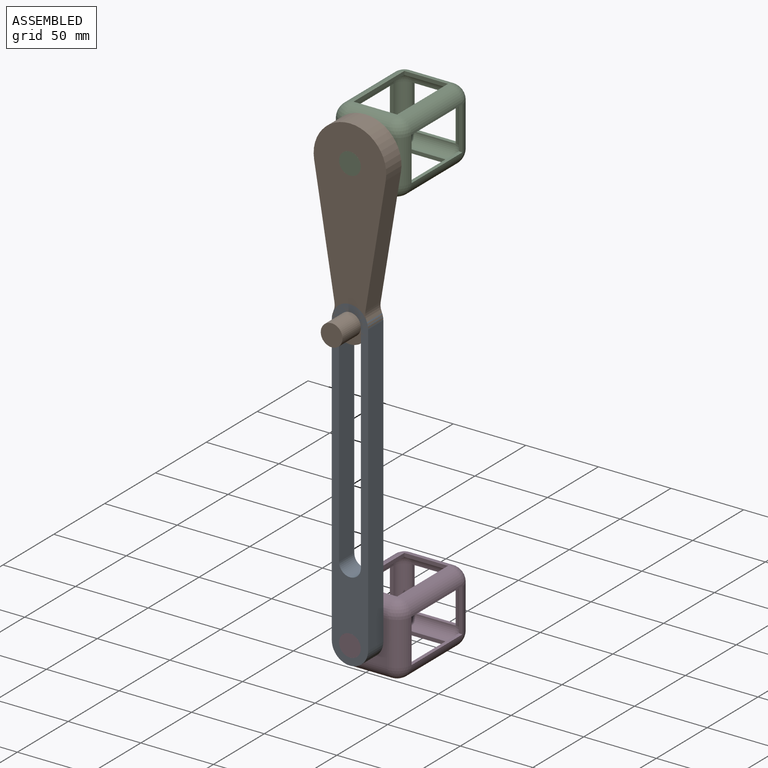
[diagram: assembled view]
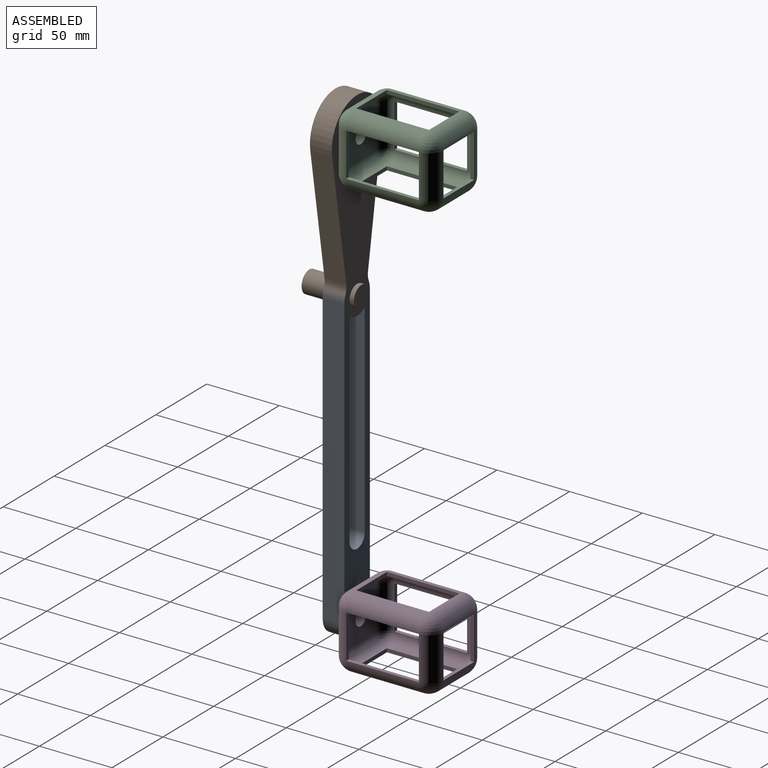
[diagram: assembled view, second angle]
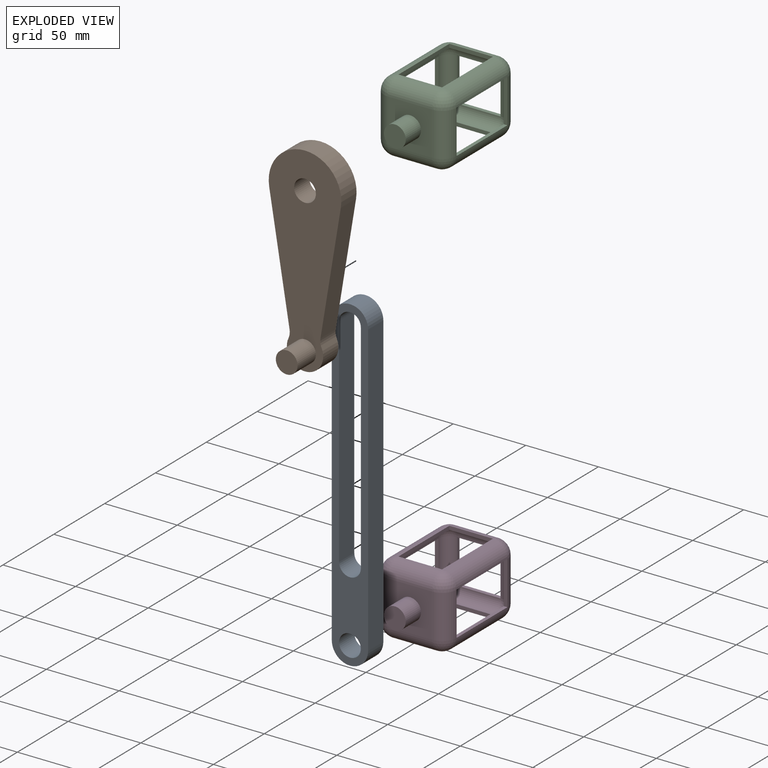
[diagram: exploded view]
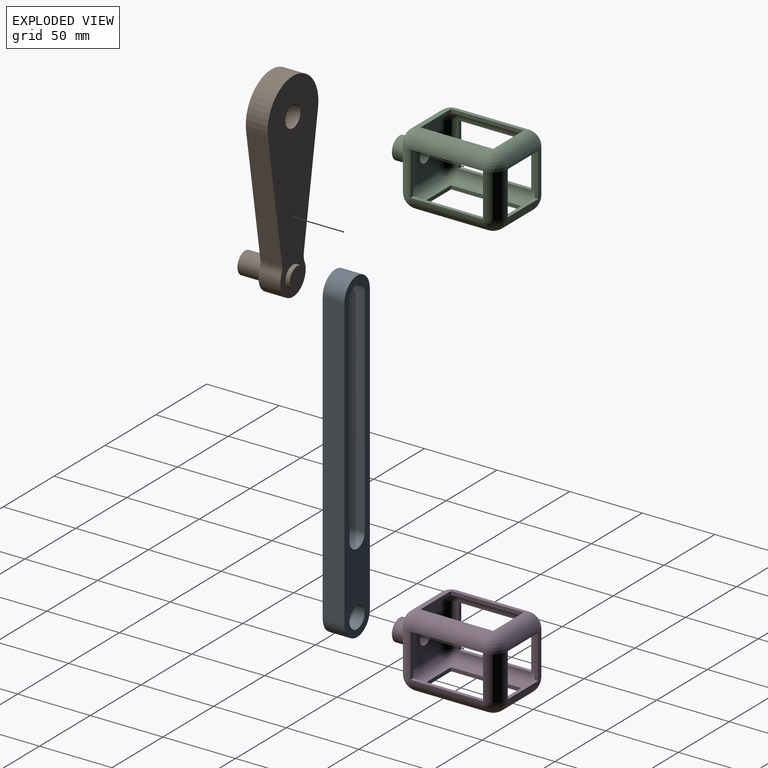
[diagram: exploded view, second angle]
ASSEMBLY  parts=4 mates=4
PART A: 11 faces, bbox 225x15x25 mm
  f0: plane 200x15mm, normal (0,0,1), area 3000mm2, adj f1,f8,f9,f10
  f1: cylinder r=12.5mm len=25mm, axis (0,1,0), area 589mm2, adj f0,f2,f9,f10
  f2: plane 200x15mm, normal (0,0,-1), area 3000mm2, adj f1,f8,f9,f10
  f3: cylinder r=7.5mm len=15mm, axis (0,1,0), area 353.4mm2, adj f4,f6,f9,f10
  f4: plane 150x15mm, normal (0,0,-1), area 2250mm2, adj f3,f5,f9,f10
  f5: cylinder r=7.5mm len=15mm, axis (0,1,0), area 353.4mm2, adj f4,f6,f9,f10
  f6: plane 150x15mm, normal (0,0,1), area 2250mm2, adj f3,f5,f9,f10
  f7: cylinder r=7.5mm len=15mm, axis (0,1,0), area 706.9mm2, adj f9,f10
  f8: cylinder r=12.5mm len=25mm, axis (0,1,0), area 589mm2, adj f0,f2,f9,f10
  f9: plane 225x25mm, normal (0,-1,0), area 2887.4mm2, adj f0,f1,f2,f3,f4,f5,f6,f7
  f10: plane 225x25mm, normal (0,1,0), area 2887.4mm2, adj f0,f1,f2,f3,f4,f5,f6,f7
PART B: 13 faces, bbox 137.5x36x50 mm
  f0: plane 85.07x15mm, normal (0.16,0,0.99), area 1293.2mm2, adj f1,f6,f7,f8
  f1: cylinder r=25mm len=50mm, axis (0,1,0), area 1300.6mm2, adj f0,f2,f7,f8
  f2: plane 85.07x15mm, normal (0.16,0,-0.99), area 1293.2mm2, adj f1,f3,f7,f8
  f3: cylinder r=10mm len=15mm, axis (0,1,0), area 88mm2, adj f2,f4,f7,f8
  f4: cylinder r=12.5mm len=25mm, axis (0,1,0), area 747.8mm2, adj f3,f6,f7,f8
  f5: cylinder r=7.5mm len=15mm, axis (0,1,0), area 706.9mm2, adj f7,f8
  f6: cylinder r=10mm len=15mm, axis (0,1,0), area 88mm2, adj f0,f4,f7,f8
  f7: plane 137.5x50mm, normal (0,-1,0), area 4328mm2, adj f0,f1,f2,f3,f4,f5,f6,f11
  f8: plane 137.5x50mm, normal (0,1,0), area 4328mm2, adj f0,f1,f2,f3,f4,f5,f6,f10
  f9: plane 15x15mm, normal (0,1,0), area 176.7mm2, adj f10
  f10: cylinder r=7.5mm len=15mm, axis (0,-1,0), area 141.4mm2, adj f8,f9
  f11: cylinder r=7.5mm len=18mm, axis (0,-1,0), area 848.2mm2, adj f7,f12
  f12: plane 15x15mm, normal (0,-1,0), area 176.7mm2, adj f11
PART C: 66 faces, bbox 50x85x50 mm
  f0: plane 30x30mm, normal (0,-1,0), area 723.3mm2, adj f1,f6,f7,f16,f17
  f1: cylinder r=7.5mm len=15mm, axis (0,1,0), area 706.9mm2, adj f0,f2
  f2: plane 15x15mm, normal (0,-1,0), area 176.7mm2, adj f1
  f3: cylinder r=10mm len=50mm, axis (0,-1,0), area 785.4mm2, adj f4,f5,f32,f38
  f4: sphere r=10mm, area 157.1mm2, adj f3,f6,f7
  f5: sphere r=10mm, area 157.1mm2, adj f3,f9,f10
  f6: cylinder r=10mm len=30mm, axis (0,0,1), area 471.2mm2, adj f0,f4,f12,f35
  f7: cylinder r=10mm len=30mm, axis (1,0,0), area 471.2mm2, adj f0,f4,f13,f31
  f8: cylinder r=10mm len=50mm, axis (0,1,0), area 785.4mm2, adj f13,f14,f28,f34
  f9: cylinder r=10mm len=30mm, axis (-1,0,0), area 471.2mm2, adj f5,f14,f33,f41
  f10: cylinder r=10mm len=30mm, axis (0,0,-1), area 471.2mm2, adj f5,f15,f37,f42
  f11: cylinder r=10mm len=50mm, axis (0,1,0), area 785.4mm2, adj f12,f15,f26,f36
  f12: sphere r=10mm, area 157.1mm2, adj f6,f11,f16
  f13: sphere r=10mm, area 157.1mm2, adj f7,f8,f17
  f14: sphere r=10mm, area 157.1mm2, adj f8,f9,f18
  f15: sphere r=10mm, area 157.1mm2, adj f10,f11,f19
  f16: cylinder r=10mm len=30mm, axis (-1,0,0), area 471.2mm2, adj f0,f12,f20,f23
  f17: cylinder r=10mm len=30mm, axis (0,0,-1), area 471.2mm2, adj f0,f13,f20,f27
  f18: cylinder r=10mm len=30mm, axis (0,0,1), area 471.2mm2, adj f14,f21,f29,f40
  f19: cylinder r=10mm len=30mm, axis (1,0,0), area 471.2mm2, adj f15,f21,f25,f39
  f20: sphere r=10mm, area 157.1mm2, adj f16,f17,f22
  f21: sphere r=10mm, area 157.1mm2, adj f18,f19,f22
  f22: cylinder r=10mm len=50mm, axis (0,-1,0), area 785.4mm2, adj f20,f21,f24,f30
  f23: plane 30x2.5mm, normal (0,1,0), area 75mm2, adj f16,f24,f26,f59
  f24: plane 50x2.5mm, normal (-1,0,0), area 125mm2, adj f22,f23,f25,f65
  f25: plane 30x2.5mm, normal (0,-1,0), area 75mm2, adj f19,f24,f26,f62
  f26: plane 50x2.5mm, normal (1,0,0), area 125mm2, adj f11,f23,f25,f54
  f27: plane 30x2.5mm, normal (0,1,0), area 75mm2, adj f17,f28,f30,f60
  f28: plane 50x2.5mm, normal (0,0,-1), area 125mm2, adj f8,f27,f29,f51
  f29: plane 30x2.5mm, normal (0,-1,0), area 75mm2, adj f18,f28,f30,f61
  f30: plane 50x2.5mm, normal (0,0,1), area 125mm2, adj f22,f27,f29,f65
  f31: plane 30x2.5mm, normal (0,1,0), area 75mm2, adj f7,f32,f34,f50
  f32: plane 50x2.5mm, normal (1,0,0), area 125mm2, adj f3,f31,f33,f46
  f33: plane 30x2.5mm, normal (0,-1,0), area 75mm2, adj f9,f32,f34,f52
  f34: plane 50x2.5mm, normal (-1,0,0), area 125mm2, adj f8,f31,f33,f51
  f35: plane 30x2.5mm, normal (0,1,0), area 75mm2, adj f6,f36,f38,f49
  f36: plane 50x2.5mm, normal (0,0,1), area 125mm2, adj f11,f35,f37,f54
  f37: plane 30x2.5mm, normal (0,-1,0), area 75mm2, adj f10,f36,f38,f53
  f38: plane 50x2.5mm, normal (0,0,-1), area 125mm2, adj f3,f35,f37,f46
  f39: plane 30x2.5mm, normal (0,0,1), area 75mm2, adj f19,f40,f42,f62
  f40: plane 30x2.5mm, normal (-1,0,0), area 75mm2, adj f18,f39,f41,f61
  f41: plane 30x2.5mm, normal (0,0,-1), area 75mm2, adj f9,f40,f42,f52
  f42: plane 30x2.5mm, normal (1,0,0), area 75mm2, adj f10,f39,f41,f53
  f43: plane 30x30mm, normal (0,1,0), area 821.5mm2, adj f44,f49,f50,f59,f60
  f44: cylinder r=5mm len=15mm, axis (0,1,0), area 471.2mm2, adj f43,f45
  f45: plane 10x10mm, normal (0,1,0), area 78.5mm2, adj f44
  f46: cylinder r=7.5mm len=50mm, axis (0,-1,0), area 589mm2, adj f32,f38,f47,f48
  f47: sphere r=7.5mm, area 88.4mm2, adj f46,f49,f50
  f48: sphere r=7.5mm, area 88.4mm2, adj f46,f52,f53
  f49: cylinder r=7.5mm len=30mm, axis (0,0,1), area 353.4mm2, adj f35,f43,f47,f55
  f50: cylinder r=7.5mm len=30mm, axis (1,0,0), area 353.4mm2, adj f31,f43,f47,f56
  f51: cylinder r=7.5mm len=50mm, axis (0,1,0), area 589mm2, adj f28,f34,f56,f57
  f52: cylinder r=7.5mm len=30mm, axis (-1,0,0), area 353.4mm2, adj f33,f41,f48,f57
  f53: cylinder r=7.5mm len=30mm, axis (0,0,-1), area 353.4mm2, adj f37,f42,f48,f58
  f54: cylinder r=7.5mm len=50mm, axis (0,1,0), area 589mm2, adj f26,f36,f55,f58
  f55: sphere r=7.5mm, area 88.4mm2, adj f49,f54,f59
  f56: sphere r=7.5mm, area 88.4mm2, adj f50,f51,f60
  f57: sphere r=7.5mm, area 88.4mm2, adj f51,f52,f61
  f58: sphere r=7.5mm, area 88.4mm2, adj f53,f54,f62
  f59: cylinder r=7.5mm len=30mm, axis (-1,0,0), area 353.4mm2, adj f23,f43,f55,f63
  f60: cylinder r=7.5mm len=30mm, axis (0,0,-1), area 353.4mm2, adj f27,f43,f56,f63
  f61: cylinder r=7.5mm len=30mm, axis (0,0,1), area 353.4mm2, adj f29,f40,f57,f64
  f62: cylinder r=7.5mm len=30mm, axis (1,0,0), area 353.4mm2, adj f25,f39,f58,f64
  f63: sphere r=7.5mm, area 88.4mm2, adj f59,f60,f65
  f64: sphere r=7.5mm, area 88.4mm2, adj f61,f62,f65
  f65: cylinder r=7.5mm len=50mm, axis (0,-1,0), area 589mm2, adj f24,f30,f63,f64
PART D: same geometry as C
PLACE A rot(axis=(0,1,0),90deg) t=(147.14,-64.48,277.13)mm
PLACE B rot(axis=(0,1,0),90deg) t=(159.64,-64.48,377.13)mm
PLACE C rot(axis=(0.93,0,0.38),0deg) t=(159.64,5.52,377.13)mm fixed
PLACE D rot(axis=(0.65,-0.72,0.26),0deg) t=(159.64,5.52,77.13)mm fixed
MATE slider B.f10 <-> A.f1  axis (0,-1,0) through (159.64,-79.48,277.13)mm
MATE revolute C.f1 <-> B.f5  axis (0,1,0) through (159.64,-64.48,377.13)mm
MATE revolute B.f10 <-> A.f1  axis (0,-1,0) through (159.64,-79.48,277.13)mm
MATE revolute D.f1 <-> A.f7  axis (0,1,0) through (159.64,-64.48,77.13)mm
